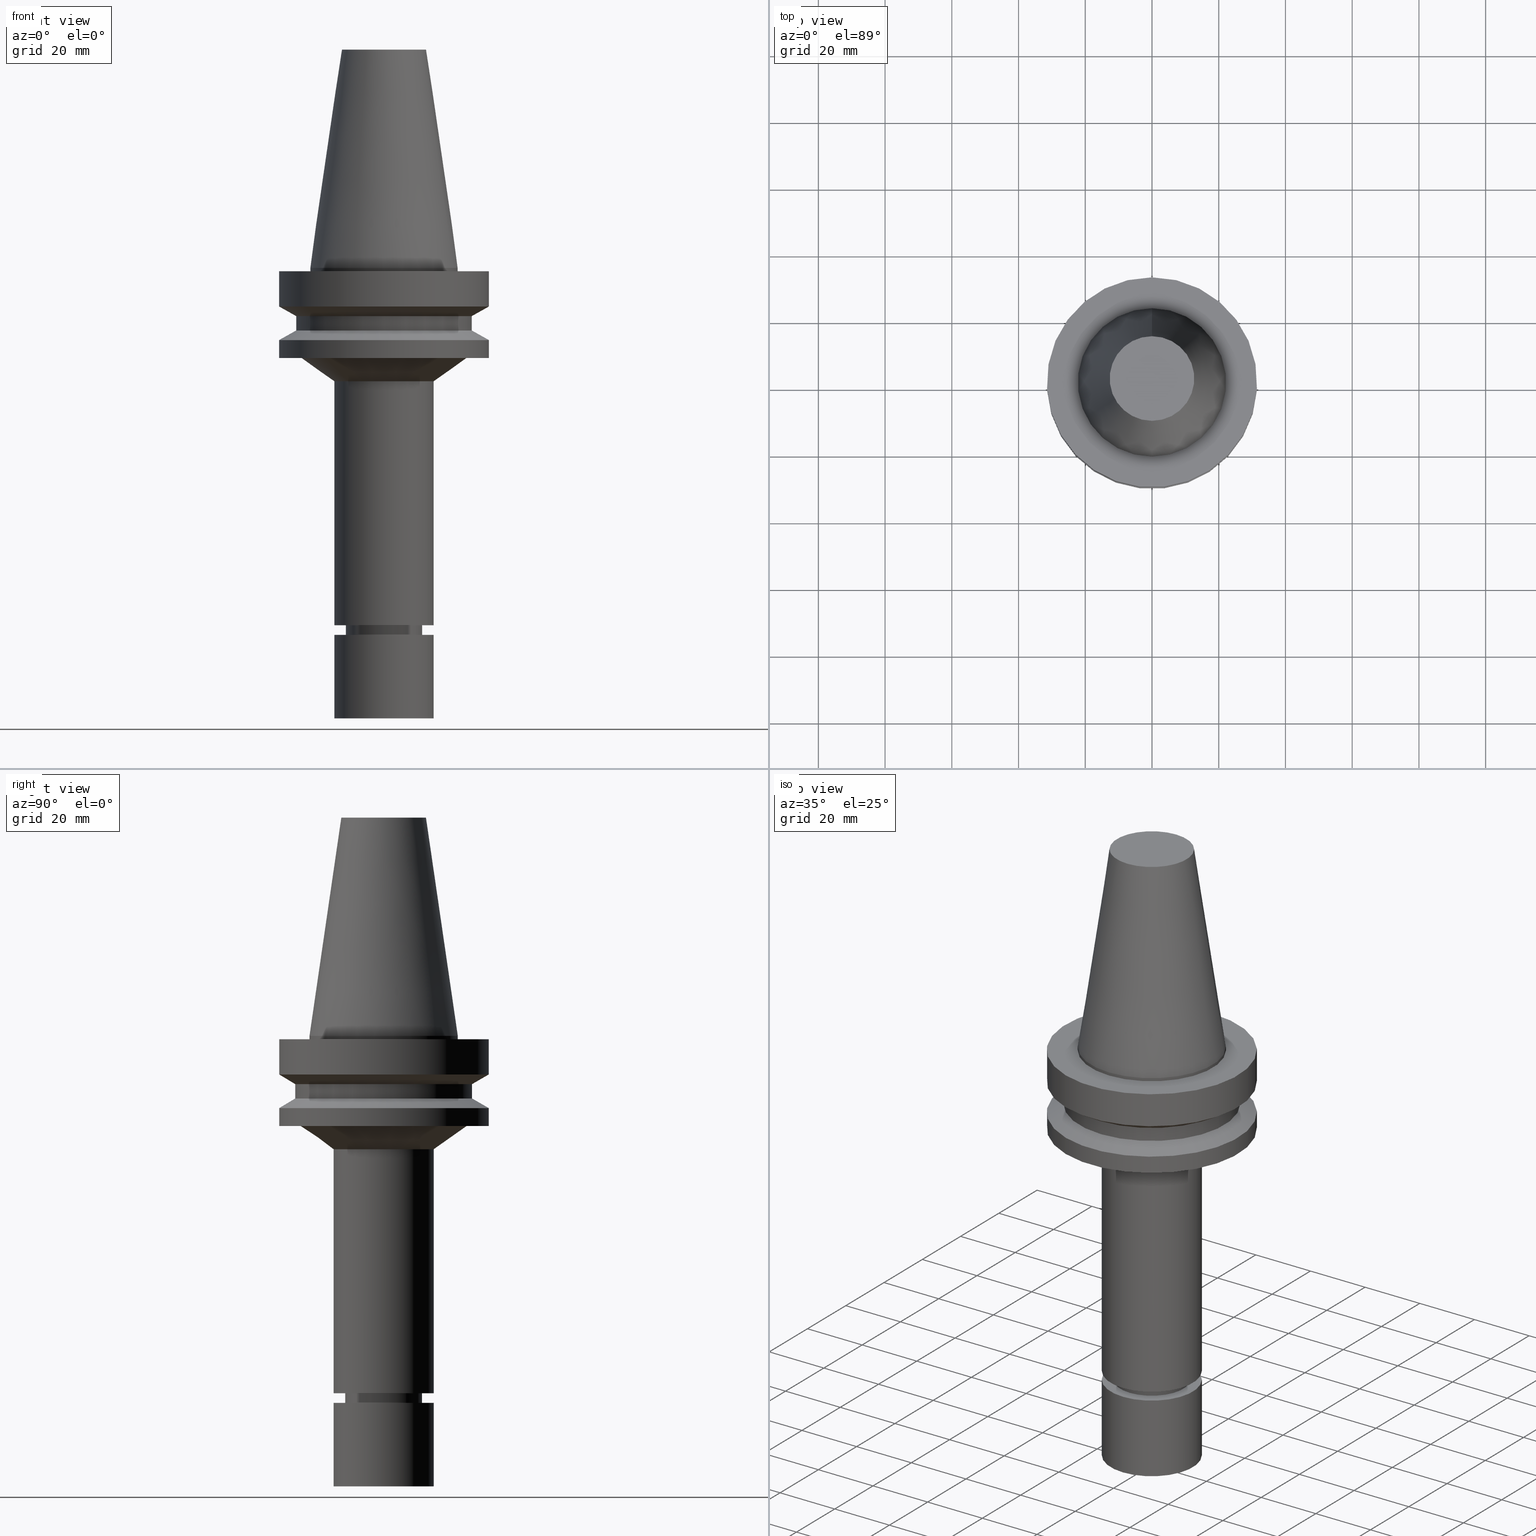
[diagram: canonical four-view strip — front | top / right | iso, engineering-drawing reading convention]
A machine part, canonical four-view strip (front | top / right | iso — engineering-drawing reading convention). The complete STEP part file that produces these views, byte-faithful:
ISO-10303-21;
HEADER;
FILE_DESCRIPTION((''),'1');
FILE_NAME('V:/90_\X2\53D65F9730C730FC30BF\X0\/00_\X2\6DE18DEF30C730FC30BF\X0\/ALL/BBT-BKUS\X2\FF76FF80FF9BFF78FF9E752852A05DE556F3\X0\201801/BBT40-MEGAER/BBT40-MEGAER16-135NL.stp','2018-02-07T01:48:48',(''),(''),'Spatial Interop R21 SP3','Kubotek KeyCreator 2011 V10.0.2 (22737)',' ');
FILE_SCHEMA(('automotive_design'));
ENDSEC;
DATA;
#1=MECHANICAL_DESIGN_GEOMETRIC_PRESENTATION_REPRESENTATION(' ',(#14,#15,#16,#17,#18,#19,#20,#21,#22,#23,#24,#25,#26,#27,#28,#29,#30,#31,#32,#33,#34,#35,#36,#37,#38,#39,#40,#41,#42,#43,#44,#45,#46,#47,#48,#49,#50,#51,#52,#53,#54,#55),#10);
#2=PRODUCT_DEFINITION_CONTEXT('',#56,'design');
#3=APPLICATION_PROTOCOL_DEFINITION('INTERNATIONAL STANDARD','automotive_design',1994,#56);
#4=PRODUCT_CATEGORY_RELATIONSHIP('NONE','NONE',#57,#58);
#5=SHAPE_DEFINITION_REPRESENTATION(#59,#60);
#6=PRODUCT_DEFINITION_CONTEXT('',#61,'design');
#7=APPLICATION_PROTOCOL_DEFINITION('INTERNATIONAL STANDARD','automotive_design',1994,#61);
#8=PRODUCT_CATEGORY_RELATIONSHIP('NONE','NONE',#62,#63);
#9=SHAPE_DEFINITION_REPRESENTATION(#64,#65);
#10= (GEOMETRIC_REPRESENTATION_CONTEXT(3)GLOBAL_UNCERTAINTY_ASSIGNED_CONTEXT((#68))GLOBAL_UNIT_ASSIGNED_CONTEXT((#70,#71,#72))REPRESENTATION_CONTEXT('NONE','WORKSPACE'));
#14=STYLED_ITEM('',(#74),#75);
#15=STYLED_ITEM('',(#76,#77),#78);
#16=STYLED_ITEM('',(#79),#80);
#17=STYLED_ITEM('',(#81,#82),#83);
#18=STYLED_ITEM('',(#84),#85);
#19=STYLED_ITEM('',(#86,#87),#88);
#20=STYLED_ITEM('',(#89),#90);
#21=STYLED_ITEM('',(#91),#92);
#22=STYLED_ITEM('',(#93,#94),#95);
#23=STYLED_ITEM('',(#96,#97),#98);
#24=STYLED_ITEM('',(#99),#100);
#25=STYLED_ITEM('',(#101,#102),#103);
#26=STYLED_ITEM('',(#104),#105);
#27=STYLED_ITEM('',(#106),#107);
#28=STYLED_ITEM('',(#108),#109);
#29=STYLED_ITEM('',(#110,#111),#112);
#30=STYLED_ITEM('',(#113,#114),#115);
#31=STYLED_ITEM('',(#116,#117),#118);
#32=STYLED_ITEM('',(#119,#120),#121);
#33=STYLED_ITEM('',(#122,#123),#124);
#34=STYLED_ITEM('',(#125),#126);
#35=STYLED_ITEM('',(#127,#128),#129);
#36=STYLED_ITEM('',(#130,#131),#132);
#37=STYLED_ITEM('',(#133,#134),#135);
#38=STYLED_ITEM('',(#136),#137);
#39=STYLED_ITEM('',(#138,#139),#140);
#40=STYLED_ITEM('',(#141,#142),#143);
#41=STYLED_ITEM('',(#144),#145);
#42=STYLED_ITEM('',(#146,#147),#148);
#43=STYLED_ITEM('',(#149),#150);
#44=STYLED_ITEM('',(#151),#152);
#45=STYLED_ITEM('',(#153,#154),#155);
#46=STYLED_ITEM('',(#156),#157);
#47=STYLED_ITEM('',(#158),#159);
#48=STYLED_ITEM('',(#160,#161),#162);
#49=STYLED_ITEM('',(#163,#164),#165);
#50=STYLED_ITEM('',(#166,#167),#168);
#51=STYLED_ITEM('',(#169),#170);
#52=STYLED_ITEM('',(#171,#172),#173);
#53=STYLED_ITEM('',(#174,#175),#176);
#54=STYLED_ITEM('',(#177),#178);
#55=STYLED_ITEM('',(#179),#180);
#56=APPLICATION_CONTEXT(' ');
#57=PRODUCT_CATEGORY('part','NONE');
#58=PRODUCT_RELATED_PRODUCT_CATEGORY('detail',' ',(#181));
#59=PRODUCT_DEFINITION_SHAPE('NONE','NONE',#182);
#60=ADVANCED_BREP_SHAPE_REPRESENTATION('Unnamed[1]',(#132,#183),#10);
#61=APPLICATION_CONTEXT(' ');
#62=PRODUCT_CATEGORY('part','NONE');
#63=PRODUCT_RELATED_PRODUCT_CATEGORY('detail',' ',(#184));
#64=PRODUCT_DEFINITION_SHAPE('NONE','NONE',#185);
#65=ADVANCED_BREP_SHAPE_REPRESENTATION('Unnamed[1]',(#98,#186),#10);
#68=UNCERTAINTY_MEASURE_WITH_UNIT(LENGTH_MEASURE(1.0E-006),#70,'','');
#70= (CONVERSION_BASED_UNIT('MILLIMETRE',#189)LENGTH_UNIT()NAMED_UNIT(#192));
#71= (NAMED_UNIT(#194)PLANE_ANGLE_UNIT()SI_UNIT($,.RADIAN.));
#72= (NAMED_UNIT(#194)SOLID_ANGLE_UNIT()SI_UNIT($,.STERADIAN.));
#74=PRESENTATION_STYLE_ASSIGNMENT((#200));
#75=EDGE_CURVE('Unnamed[1]',#201,#201,#202,.T.);
#76=PRESENTATION_STYLE_ASSIGNMENT((#203));
#77=PRESENTATION_STYLE_ASSIGNMENT((#204));
#78=ADVANCED_FACE('Unnamed[1]',(#205,#206),#207,.T.);
#79=PRESENTATION_STYLE_ASSIGNMENT((#208));
#80=EDGE_CURVE('Unnamed[1]',#209,#209,#210,.T.);
#81=PRESENTATION_STYLE_ASSIGNMENT((#211));
#82=PRESENTATION_STYLE_ASSIGNMENT((#212));
#83=ADVANCED_FACE('Unnamed[1]',(#213),#214,.T.);
#84=PRESENTATION_STYLE_ASSIGNMENT((#215));
#85=EDGE_CURVE('Unnamed[1]',#216,#216,#217,.T.);
#86=PRESENTATION_STYLE_ASSIGNMENT((#218));
#87=PRESENTATION_STYLE_ASSIGNMENT((#219));
#88=ADVANCED_FACE('Unnamed[1]',(#220,#221),#222,.T.);
#89=PRESENTATION_STYLE_ASSIGNMENT((#223));
#90=EDGE_CURVE('Unnamed[1]',#224,#224,#225,.T.);
#91=PRESENTATION_STYLE_ASSIGNMENT((#226));
#92=EDGE_CURVE('Unnamed[1]',#227,#227,#228,.T.);
#93=PRESENTATION_STYLE_ASSIGNMENT((#229));
#94=PRESENTATION_STYLE_ASSIGNMENT((#230));
#95=ADVANCED_FACE('Unnamed[1]',(#231,#232),#233,.T.);
#96=PRESENTATION_STYLE_ASSIGNMENT((#234));
#97=PRESENTATION_STYLE_ASSIGNMENT((#235));
#98=MANIFOLD_SOLID_BREP('Unnamed[1]',#236);
#99=PRESENTATION_STYLE_ASSIGNMENT((#237));
#100=EDGE_CURVE('Unnamed[1]',#238,#238,#239,.T.);
#101=PRESENTATION_STYLE_ASSIGNMENT((#240));
#102=PRESENTATION_STYLE_ASSIGNMENT((#241));
#103=ADVANCED_FACE('Unnamed[1]',(#242,#243),#244,.T.);
#104=PRESENTATION_STYLE_ASSIGNMENT((#245));
#105=EDGE_CURVE('Unnamed[1]',#246,#246,#247,.T.);
#106=PRESENTATION_STYLE_ASSIGNMENT((#248));
#107=EDGE_CURVE('Unnamed[1]',#249,#249,#250,.T.);
#108=PRESENTATION_STYLE_ASSIGNMENT((#251));
#109=EDGE_CURVE('Unnamed[1]',#252,#252,#253,.T.);
#110=PRESENTATION_STYLE_ASSIGNMENT((#254));
#111=PRESENTATION_STYLE_ASSIGNMENT((#255));
#112=ADVANCED_FACE('Unnamed[1]',(#256,#257),#258,.T.);
#113=PRESENTATION_STYLE_ASSIGNMENT((#259));
#114=PRESENTATION_STYLE_ASSIGNMENT((#260));
#115=ADVANCED_FACE('Unnamed[1]',(#261,#262),#263,.T.);
#116=PRESENTATION_STYLE_ASSIGNMENT((#264));
#117=PRESENTATION_STYLE_ASSIGNMENT((#265));
#118=ADVANCED_FACE('Unnamed[1]',(#266),#267,.T.);
#119=PRESENTATION_STYLE_ASSIGNMENT((#268));
#120=PRESENTATION_STYLE_ASSIGNMENT((#269));
#121=ADVANCED_FACE('Unnamed[1]',(#270,#271),#272,.T.);
#122=PRESENTATION_STYLE_ASSIGNMENT((#273));
#123=PRESENTATION_STYLE_ASSIGNMENT((#274));
#124=ADVANCED_FACE('Unnamed[1]',(#275,#276),#277,.T.);
#125=PRESENTATION_STYLE_ASSIGNMENT((#278));
#126=EDGE_CURVE('Unnamed[1]',#279,#279,#280,.T.);
#127=PRESENTATION_STYLE_ASSIGNMENT((#281));
#128=PRESENTATION_STYLE_ASSIGNMENT((#282));
#129=ADVANCED_FACE('Unnamed[1]',(#283,#284),#285,.T.);
#130=PRESENTATION_STYLE_ASSIGNMENT((#286));
#131=PRESENTATION_STYLE_ASSIGNMENT((#287));
#132=MANIFOLD_SOLID_BREP('Unnamed[1]',#288);
#133=PRESENTATION_STYLE_ASSIGNMENT((#289));
#134=PRESENTATION_STYLE_ASSIGNMENT((#290));
#135=ADVANCED_FACE('Unnamed[1]',(#291),#292,.T.);
#136=PRESENTATION_STYLE_ASSIGNMENT((#293));
#137=EDGE_CURVE('Unnamed[1]',#294,#294,#295,.T.);
#138=PRESENTATION_STYLE_ASSIGNMENT((#296));
#139=PRESENTATION_STYLE_ASSIGNMENT((#297));
#140=ADVANCED_FACE('Unnamed[1]',(#298,#299),#300,.T.);
#141=PRESENTATION_STYLE_ASSIGNMENT((#301));
#142=PRESENTATION_STYLE_ASSIGNMENT((#302));
#143=ADVANCED_FACE('Unnamed[1]',(#303,#304),#305,.T.);
#144=PRESENTATION_STYLE_ASSIGNMENT((#306));
#145=EDGE_CURVE('Unnamed[1]',#307,#307,#308,.T.);
#146=PRESENTATION_STYLE_ASSIGNMENT((#309));
#147=PRESENTATION_STYLE_ASSIGNMENT((#310));
#148=ADVANCED_FACE('Unnamed[1]',(#311,#312),#313,.T.);
#149=PRESENTATION_STYLE_ASSIGNMENT((#314));
#150=EDGE_CURVE('Unnamed[1]',#315,#315,#316,.T.);
#151=PRESENTATION_STYLE_ASSIGNMENT((#317));
#152=EDGE_CURVE('Unnamed[1]',#318,#318,#319,.T.);
#153=PRESENTATION_STYLE_ASSIGNMENT((#320));
#154=PRESENTATION_STYLE_ASSIGNMENT((#321));
#155=ADVANCED_FACE('Unnamed[1]',(#322,#323),#324,.T.);
#156=PRESENTATION_STYLE_ASSIGNMENT((#325));
#157=EDGE_CURVE('Unnamed[1]',#326,#326,#327,.T.);
#158=PRESENTATION_STYLE_ASSIGNMENT((#328));
#159=EDGE_CURVE('Unnamed[1]',#329,#329,#330,.T.);
#160=PRESENTATION_STYLE_ASSIGNMENT((#331));
#161=PRESENTATION_STYLE_ASSIGNMENT((#332));
#162=ADVANCED_FACE('Unnamed[1]',(#333),#334,.T.);
#163=PRESENTATION_STYLE_ASSIGNMENT((#335));
#164=PRESENTATION_STYLE_ASSIGNMENT((#336));
#165=ADVANCED_FACE('Unnamed[1]',(#337,#338),#339,.T.);
#166=PRESENTATION_STYLE_ASSIGNMENT((#340));
#167=PRESENTATION_STYLE_ASSIGNMENT((#341));
#168=ADVANCED_FACE('Unnamed[1]',(#342,#343),#344,.T.);
#169=PRESENTATION_STYLE_ASSIGNMENT((#345));
#170=EDGE_CURVE('Unnamed[1]',#346,#346,#347,.T.);
#171=PRESENTATION_STYLE_ASSIGNMENT((#348));
#172=PRESENTATION_STYLE_ASSIGNMENT((#349));
#173=ADVANCED_FACE('Unnamed[1]',(#350,#351),#352,.T.);
#174=PRESENTATION_STYLE_ASSIGNMENT((#353));
#175=PRESENTATION_STYLE_ASSIGNMENT((#354));
#176=ADVANCED_FACE('Unnamed[1]',(#355,#356),#357,.T.);
#177=PRESENTATION_STYLE_ASSIGNMENT((#358));
#178=EDGE_CURVE('Unnamed[1]',#359,#359,#360,.T.);
#179=PRESENTATION_STYLE_ASSIGNMENT((#361));
#180=EDGE_CURVE('Unnamed[1]',#362,#362,#363,.T.);
#181=PRODUCT('Unnamed[1]','Unnamed[1]','PART-Unnamed[1]-DESC',(#364));
#182=PRODUCT_DEFINITION('NONE','NONE',#365,#2);
#183=AXIS2_PLACEMENT_3D('',#366,#367,#368);
#184=PRODUCT('Unnamed[1]','Unnamed[1]','PART-Unnamed[1]-DESC',(#369));
#185=PRODUCT_DEFINITION('NONE','NONE',#370,#6);
#186=AXIS2_PLACEMENT_3D('',#371,#372,#373);
#189=LENGTH_MEASURE_WITH_UNIT(LENGTH_MEASURE(1.0),#374);
#192=DIMENSIONAL_EXPONENTS(1.0,0.0,0.0,0.0,0.0,0.0,0.0);
#194=DIMENSIONAL_EXPONENTS(0.0,0.0,0.0,0.0,0.0,0.0,0.0);
#200=CURVE_STYLE('',#375,POSITIVE_LENGTH_MEASURE(1000.0),#376);
#201=VERTEX_POINT('',#377);
#202=CIRCLE('',#378,22.225);
#203=SURFACE_STYLE_USAGE(.BOTH.,#379);
#204=CURVE_STYLE('',#380,POSITIVE_LENGTH_MEASURE(1000.0),#381);
#205=FACE_BOUND('',#382,.T.);
#206=FACE_BOUND('',#383,.T.);
#207=CONICAL_SURFACE('',#384,19.9344124647526,0.956240827688237);
#208=CURVE_STYLE('',#385,POSITIVE_LENGTH_MEASURE(1000.0),#386);
#209=VERTEX_POINT('',#387);
#210=CIRCLE('',#388,15.0000000000004);
#211=SURFACE_STYLE_USAGE(.BOTH.,#389);
#212=CURVE_STYLE('',#390,POSITIVE_LENGTH_MEASURE(1000.0),#391);
#213=FACE_OUTER_BOUND('',#392,.T.);
#214=PLANE('',#393);
#215=CURVE_STYLE('',#394,POSITIVE_LENGTH_MEASURE(1000.0),#395);
#216=VERTEX_POINT('',#396);
#217=CIRCLE('',#397,10.9999999999998);
#218=SURFACE_STYLE_USAGE(.BOTH.,#398);
#219=CURVE_STYLE('',#399,POSITIVE_LENGTH_MEASURE(1000.0),#400);
#220=FACE_BOUND('',#401,.T.);
#221=FACE_BOUND('',#402,.T.);
#222=CONICAL_SURFACE('',#403,10.4499999999998,0.523598775598218);
#223=CURVE_STYLE('',#404,POSITIVE_LENGTH_MEASURE(1000.0),#405);
#224=VERTEX_POINT('',#406);
#225=CIRCLE('',#407,12.6875000000001);
#226=CURVE_STYLE('',#408,POSITIVE_LENGTH_MEASURE(1000.0),#409);
#227=VERTEX_POINT('',#410);
#228=CIRCLE('',#411,31.5000000000003);
#229=SURFACE_STYLE_USAGE(.BOTH.,#412);
#230=CURVE_STYLE('',#413,POSITIVE_LENGTH_MEASURE(1000.0),#414);
#231=FACE_OUTER_BOUND('',#415,.T.);
#232=FACE_BOUND('',#416,.T.);
#233=PLANE('',#417);
#234=SURFACE_STYLE_USAGE(.BOTH.,#418);
#235=CURVE_STYLE('',#419,POSITIVE_LENGTH_MEASURE(1000.0),#420);
#236=CLOSED_SHELL('',(#162,#135,#168));
#237=CURVE_STYLE('',#421,POSITIVE_LENGTH_MEASURE(1000.0),#422);
#238=VERTEX_POINT('',#423);
#239=CIRCLE('',#424,11.500000000002);
#240=SURFACE_STYLE_USAGE(.BOTH.,#425);
#241=CURVE_STYLE('',#426,POSITIVE_LENGTH_MEASURE(1000.0),#427);
#242=FACE_BOUND('',#428,.T.);
#243=FACE_BOUND('',#429,.T.);
#244=CYLINDRICAL_SURFACE('',#430,15.0000000000002);
#245=CURVE_STYLE('',#431,POSITIVE_LENGTH_MEASURE(1000.0),#432);
#246=VERTEX_POINT('',#433);
#247=CIRCLE('',#434,24.8688249295048);
#248=CURVE_STYLE('',#435,POSITIVE_LENGTH_MEASURE(1000.0),#436);
#249=VERTEX_POINT('',#437);
#250=CIRCLE('',#438,26.4999999999994);
#251=CURVE_STYLE('',#439,POSITIVE_LENGTH_MEASURE(1000.0),#440);
#252=VERTEX_POINT('',#441);
#253=CIRCLE('',#442,31.5000000000003);
#254=SURFACE_STYLE_USAGE(.BOTH.,#443);
#255=CURVE_STYLE('',#444,POSITIVE_LENGTH_MEASURE(1000.0),#445);
#256=FACE_BOUND('',#446,.T.);
#257=FACE_BOUND('',#447,.T.);
#258=CYLINDRICAL_SURFACE('',#448,11.4999999999963);
#259=SURFACE_STYLE_USAGE(.BOTH.,#449);
#260=CURVE_STYLE('',#450,POSITIVE_LENGTH_MEASURE(1000.0),#451);
#261=FACE_BOUND('',#452,.T.);
#262=FACE_BOUND('',#453,.T.);
#263=CYLINDRICAL_SURFACE('',#454,11.0);
#264=SURFACE_STYLE_USAGE(.BOTH.,#455);
#265=CURVE_STYLE('',#456,POSITIVE_LENGTH_MEASURE(1000.0),#457);
#266=FACE_OUTER_BOUND('',#458,.T.);
#267=PLANE('',#459);
#268=SURFACE_STYLE_USAGE(.BOTH.,#460);
#269=CURVE_STYLE('',#461,POSITIVE_LENGTH_MEASURE(1000.0),#462);
#270=FACE_BOUND('',#463,.T.);
#271=FACE_OUTER_BOUND('',#464,.T.);
#272=PLANE('',#465);
#273=SURFACE_STYLE_USAGE(.BOTH.,#466);
#274=CURVE_STYLE('',#467,POSITIVE_LENGTH_MEASURE(1000.0),#468);
#275=FACE_BOUND('',#469,.T.);
#276=FACE_BOUND('',#470,.T.);
#277=CONICAL_SURFACE('',#471,11.2500000000009,1.04719755118898);
#278=CURVE_STYLE('',#472,POSITIVE_LENGTH_MEASURE(1000.0),#473);
#279=VERTEX_POINT('',#474);
#280=CIRCLE('',#475,31.5000000000006);
#281=SURFACE_STYLE_USAGE(.BOTH.,#476);
#282=CURVE_STYLE('',#477,POSITIVE_LENGTH_MEASURE(1000.0),#478);
#283=FACE_BOUND('',#479,.T.);
#284=FACE_BOUND('',#480,.T.);
#285=CONICAL_SURFACE('',#481,29.0000000000003,1.04719755119651);
#286=SURFACE_STYLE_USAGE(.BOTH.,#482);
#287=CURVE_STYLE('',#483,POSITIVE_LENGTH_MEASURE(1000.0),#484);
#288=CLOSED_SHELL('',(#118,#143,#155,#95,#173,#148,#165,#129,#176,#140,#78,#103,#121,#112,#124,#115,#88,#83));
#289=SURFACE_STYLE_USAGE(.BOTH.,#485);
#290=CURVE_STYLE('',#486,POSITIVE_LENGTH_MEASURE(1000.0),#487);
#291=FACE_OUTER_BOUND('',#488,.T.);
#292=PLANE('',#489);
#293=CURVE_STYLE('',#490,POSITIVE_LENGTH_MEASURE(1000.0),#491);
#294=VERTEX_POINT('',#492);
#295=CIRCLE('',#493,14.9999999999999);
#296=SURFACE_STYLE_USAGE(.BOTH.,#494);
#297=CURVE_STYLE('',#495,POSITIVE_LENGTH_MEASURE(1000.0),#496);
#298=FACE_BOUND('',#497,.T.);
#299=FACE_OUTER_BOUND('',#498,.T.);
#300=PLANE('',#499);
#301=SURFACE_STYLE_USAGE(.BOTH.,#500);
#302=CURVE_STYLE('',#501,POSITIVE_LENGTH_MEASURE(1000.0),#502);
#303=FACE_BOUND('',#503,.T.);
#304=FACE_BOUND('',#504,.T.);
#305=CONICAL_SURFACE('',#505,17.45625,0.144812498238936);
#306=CURVE_STYLE('',#506,POSITIVE_LENGTH_MEASURE(1000.0),#507);
#307=VERTEX_POINT('',#508);
#308=CIRCLE('',#509,22.225);
#309=SURFACE_STYLE_USAGE(.BOTH.,#510);
#310=CURVE_STYLE('',#511,POSITIVE_LENGTH_MEASURE(1000.0),#512);
#311=FACE_BOUND('',#513,.T.);
#312=FACE_BOUND('',#514,.T.);
#313=CONICAL_SURFACE('',#515,28.9999999999999,1.04719755119657);
#314=CURVE_STYLE('',#516,POSITIVE_LENGTH_MEASURE(1000.0),#517);
#315=VERTEX_POINT('',#518);
#316=CIRCLE('',#519,15.0);
#317=CURVE_STYLE('',#520,POSITIVE_LENGTH_MEASURE(1000.0),#521);
#318=VERTEX_POINT('',#522);
#319=CIRCLE('',#523,15.0);
#320=SURFACE_STYLE_USAGE(.BOTH.,#524);
#321=CURVE_STYLE('',#525,POSITIVE_LENGTH_MEASURE(1000.0),#526);
#322=FACE_BOUND('',#527,.T.);
#323=FACE_BOUND('',#528,.T.);
#324=CYLINDRICAL_SURFACE('',#529,22.225);
#325=CURVE_STYLE('',#530,POSITIVE_LENGTH_MEASURE(1000.0),#531);
#326=VERTEX_POINT('',#532);
#327=CIRCLE('',#533,26.5);
#328=CURVE_STYLE('',#534,POSITIVE_LENGTH_MEASURE(1000.0),#535);
#329=VERTEX_POINT('',#536);
#330=CIRCLE('',#537,11.4999999999906);
#331=SURFACE_STYLE_USAGE(.BOTH.,#538);
#332=CURVE_STYLE('',#539,POSITIVE_LENGTH_MEASURE(1000.0),#540);
#333=FACE_OUTER_BOUND('',#541,.T.);
#334=PLANE('',#542);
#335=SURFACE_STYLE_USAGE(.BOTH.,#543);
#336=CURVE_STYLE('',#544,POSITIVE_LENGTH_MEASURE(1000.0),#545);
#337=FACE_BOUND('',#546,.T.);
#338=FACE_BOUND('',#547,.T.);
#339=CYLINDRICAL_SURFACE('',#548,26.4999999999997);
#340=SURFACE_STYLE_USAGE(.BOTH.,#549);
#341=CURVE_STYLE('',#550,POSITIVE_LENGTH_MEASURE(1000.0),#551);
#342=FACE_BOUND('',#552,.T.);
#343=FACE_BOUND('',#553,.T.);
#344=CYLINDRICAL_SURFACE('',#554,14.9999999999999);
#345=CURVE_STYLE('',#555,POSITIVE_LENGTH_MEASURE(1000.0),#556);
#346=VERTEX_POINT('',#557);
#347=CIRCLE('',#558,9.89999999999947);
#348=SURFACE_STYLE_USAGE(.BOTH.,#559);
#349=CURVE_STYLE('',#560,POSITIVE_LENGTH_MEASURE(1000.0),#561);
#350=FACE_BOUND('',#562,.T.);
#351=FACE_BOUND('',#563,.T.);
#352=CYLINDRICAL_SURFACE('',#564,31.5);
#353=SURFACE_STYLE_USAGE(.BOTH.,#565);
#354=CURVE_STYLE('',#566,POSITIVE_LENGTH_MEASURE(1000.0),#567);
#355=FACE_BOUND('',#568,.T.);
#356=FACE_BOUND('',#569,.T.);
#357=CYLINDRICAL_SURFACE('',#570,31.5000000000005);
#358=CURVE_STYLE('',#571,POSITIVE_LENGTH_MEASURE(1000.0),#572);
#359=VERTEX_POINT('',#573);
#360=CIRCLE('',#574,31.4999999999996);
#361=CURVE_STYLE('',#575,POSITIVE_LENGTH_MEASURE(1000.0),#576);
#362=VERTEX_POINT('',#577);
#363=CIRCLE('',#578,11.0000000000002);
#364=PRODUCT_CONTEXT('',#56,'mechanical');
#365=PRODUCT_DEFINITION_FORMATION_WITH_SPECIFIED_SOURCE(' ','NONE',#181,.NOT_KNOWN.);
#366=CARTESIAN_POINT('',(0.0,0.0,0.0));
#367=DIRECTION('',(0.0,0.0,1.0));
#368=DIRECTION('',(1.0,0.0,0.0));
#369=PRODUCT_CONTEXT('',#61,'mechanical');
#370=PRODUCT_DEFINITION_FORMATION_WITH_SPECIFIED_SOURCE(' ','NONE',#184,.NOT_KNOWN.);
#371=CARTESIAN_POINT('',(0.0,0.0,0.0));
#372=DIRECTION('',(0.0,0.0,1.0));
#373=DIRECTION('',(1.0,0.0,0.0));
#374= (NAMED_UNIT(#192)LENGTH_UNIT()SI_UNIT(.MILLI.,.METRE.));
#375=DRAUGHTING_PRE_DEFINED_CURVE_FONT('continuous');
#376=COLOUR_RGB('',0.0,1.0,0.0);
#377=CARTESIAN_POINT('',(6.12323399573622E-017,22.2250000000001,-0.999999999999912));
#378=AXIS2_PLACEMENT_3D('',#580,#581,#582);
#379=SURFACE_SIDE_STYLE('',(#583));
#380=DRAUGHTING_PRE_DEFINED_CURVE_FONT('continuous');
#381=COLOUR_RGB('',0.0,1.0,0.0);
#382=EDGE_LOOP('',(#584));
#383=EDGE_LOOP('',(#585));
#384=AXIS2_PLACEMENT_3D('',#586,#587,#588);
#385=DRAUGHTING_PRE_DEFINED_CURVE_FONT('continuous');
#386=COLOUR_RGB('',0.0,1.0,0.0);
#387=CARTESIAN_POINT('',(2.07973442388956E-015,15.0000000000005,-33.9646406676204));
#388=AXIS2_PLACEMENT_3D('',#589,#590,#591);
#389=SURFACE_SIDE_STYLE('',(#592));
#390=DRAUGHTING_PRE_DEFINED_CURVE_FONT('continuous');
#391=COLOUR_RGB('',0.0,1.0,0.0);
#392=EDGE_LOOP('',(#593));
#393=AXIS2_PLACEMENT_3D('',#594,#595,#596);
#394=DRAUGHTING_PRE_DEFINED_CURVE_FONT('continuous');
#395=COLOUR_RGB('',0.0,1.0,0.0);
#396=CARTESIAN_POINT('',(6.93150088317392E-015,10.9999999999999,-113.199999999998));
#397=AXIS2_PLACEMENT_3D('',#597,#598,#599);
#398=SURFACE_SIDE_STYLE('',(#600));
#399=DRAUGHTING_PRE_DEFINED_CURVE_FONT('continuous');
#400=COLOUR_RGB('',0.0,1.0,0.0);
#401=EDGE_LOOP('',(#601));
#402=EDGE_LOOP('',(#602));
#403=AXIS2_PLACEMENT_3D('',#603,#604,#605);
#404=DRAUGHTING_PRE_DEFINED_CURVE_FONT('continuous');
#405=COLOUR_RGB('',0.0,1.0,0.0);
#406=CARTESIAN_POINT('',(-4.00459503321185E-015,12.6875000000002,65.4000000000001));
#407=AXIS2_PLACEMENT_3D('',#606,#607,#608);
#408=DRAUGHTING_PRE_DEFINED_CURVE_FONT('continuous');
#409=COLOUR_RGB('',0.0,1.0,0.0);
#410=CARTESIAN_POINT('',(7.08182973902924E-016,31.5000000000004,-11.5655056526664));
#411=AXIS2_PLACEMENT_3D('',#609,#610,#611);
#412=SURFACE_SIDE_STYLE('',(#612));
#413=DRAUGHTING_PRE_DEFINED_CURVE_FONT('continuous');
#414=COLOUR_RGB('',0.0,1.0,0.0);
#415=EDGE_LOOP('',(#613));
#416=EDGE_LOOP('',(#614));
#417=AXIS2_PLACEMENT_3D('',#615,#616,#617);
#418=SURFACE_SIDE_STYLE('',(#618));
#419=DRAUGHTING_PRE_DEFINED_CURVE_FONT('continuous');
#420=COLOUR_RGB('',0.0,1.0,0.0);
#421=DRAUGHTING_PRE_DEFINED_CURVE_FONT('continuous');
#422=COLOUR_RGB('',0.0,1.0,0.0);
#423=CARTESIAN_POINT('',(6.91382462919479E-015,11.500000000002,-112.911324865397));
#424=AXIS2_PLACEMENT_3D('',#619,#620,#621);
#425=SURFACE_SIDE_STYLE('',(#622));
#426=DRAUGHTING_PRE_DEFINED_CURVE_FONT('continuous');
#427=COLOUR_RGB('',0.0,1.0,0.0);
#428=EDGE_LOOP('',(#623));
#429=EDGE_LOOP('',(#624));
#430=AXIS2_PLACEMENT_3D('',#625,#626,#627);
#431=DRAUGHTING_PRE_DEFINED_CURVE_FONT('continuous');
#432=COLOUR_RGB('',0.0,1.0,0.0);
#433=CARTESIAN_POINT('',(1.65327317884891E-015,24.8688249295049,-26.9999999999998));
#434=AXIS2_PLACEMENT_3D('',#628,#629,#630);
#435=DRAUGHTING_PRE_DEFINED_CURVE_FONT('continuous');
#436=COLOUR_RGB('',0.0,1.0,0.0);
#437=CARTESIAN_POINT('',(8.8494551369045E-016,26.4999999999995,-14.4522569986152));
#438=AXIS2_PLACEMENT_3D('',#631,#632,#633);
#439=DRAUGHTING_PRE_DEFINED_CURVE_FONT('continuous');
#440=COLOUR_RGB('',0.0,1.0,0.0);
#441=CARTESIAN_POINT('',(1.65327317884891E-015,31.5000000000004,-26.9999999999998));
#442=AXIS2_PLACEMENT_3D('',#634,#635,#636);
#443=SURFACE_SIDE_STYLE('',(#637));
#444=DRAUGHTING_PRE_DEFINED_CURVE_FONT('continuous');
#445=COLOUR_RGB('',0.0,1.0,0.0);
#446=EDGE_LOOP('',(#638));
#447=EDGE_LOOP('',(#639));
#448=AXIS2_PLACEMENT_3D('',#640,#641,#642);
#449=SURFACE_SIDE_STYLE('',(#643));
#450=DRAUGHTING_PRE_DEFINED_CURVE_FONT('continuous');
#451=COLOUR_RGB('',0.0,1.0,0.0);
#452=EDGE_LOOP('',(#644));
#453=EDGE_LOOP('',(#645));
#454=AXIS2_PLACEMENT_3D('',#646,#647,#648);
#455=SURFACE_SIDE_STYLE('',(#649));
#456=DRAUGHTING_PRE_DEFINED_CURVE_FONT('continuous');
#457=COLOUR_RGB('',0.0,1.0,0.0);
#458=EDGE_LOOP('',(#650));
#459=AXIS2_PLACEMENT_3D('',#651,#652,#653);
#460=SURFACE_SIDE_STYLE('',(#654));
#461=DRAUGHTING_PRE_DEFINED_CURVE_FONT('continuous');
#462=COLOUR_RGB('',0.0,1.0,0.0);
#463=EDGE_LOOP('',(#655));
#464=EDGE_LOOP('',(#656));
#465=AXIS2_PLACEMENT_3D('',#657,#658,#659);
#466=SURFACE_SIDE_STYLE('',(#660));
#467=DRAUGHTING_PRE_DEFINED_CURVE_FONT('continuous');
#468=COLOUR_RGB('',0.0,1.0,0.0);
#469=EDGE_LOOP('',(#661));
#470=EDGE_LOOP('',(#662));
#471=AXIS2_PLACEMENT_3D('',#663,#664,#665);
#472=DRAUGHTING_PRE_DEFINED_CURVE_FONT('continuous');
#473=COLOUR_RGB('',0.0,1.0,0.0);
#474=CARTESIAN_POINT('',(1.32473071268174E-015,31.5000000000007,-21.6344943473346));
#475=AXIS2_PLACEMENT_3D('',#666,#667,#668);
#476=SURFACE_SIDE_STYLE('',(#669));
#477=DRAUGHTING_PRE_DEFINED_CURVE_FONT('continuous');
#478=COLOUR_RGB('',0.0,1.0,0.0);
#479=EDGE_LOOP('',(#670));
#480=EDGE_LOOP('',(#671));
#481=AXIS2_PLACEMENT_3D('',#672,#673,#674);
#482=SURFACE_SIDE_STYLE('',(#675));
#483=DRAUGHTING_PRE_DEFINED_CURVE_FONT('continuous');
#484=COLOUR_RGB('',0.0,1.0,0.0);
#485=SURFACE_SIDE_STYLE('',(#676));
#486=DRAUGHTING_PRE_DEFINED_CURVE_FONT('continuous');
#487=COLOUR_RGB('',0.0,1.0,0.0);
#488=EDGE_LOOP('',(#677));
#489=AXIS2_PLACEMENT_3D('',#678,#679,#680);
#490=DRAUGHTING_PRE_DEFINED_CURVE_FONT('continuous');
#491=COLOUR_RGB('',0.0,1.0,0.0);
#492=CARTESIAN_POINT('',(8.26636589424463E-015,15.0,-135.0));
#493=AXIS2_PLACEMENT_3D('',#681,#682,#683);
#494=SURFACE_SIDE_STYLE('',(#684));
#495=DRAUGHTING_PRE_DEFINED_CURVE_FONT('continuous');
#496=COLOUR_RGB('',0.0,1.0,0.0);
#497=EDGE_LOOP('',(#685));
#498=EDGE_LOOP('',(#686));
#499=AXIS2_PLACEMENT_3D('',#687,#688,#689);
#500=SURFACE_SIDE_STYLE('',(#690));
#501=DRAUGHTING_PRE_DEFINED_CURVE_FONT('continuous');
#502=COLOUR_RGB('',0.0,1.0,0.0);
#503=EDGE_LOOP('',(#691));
#504=EDGE_LOOP('',(#692));
#505=AXIS2_PLACEMENT_3D('',#693,#694,#695);
#506=DRAUGHTING_PRE_DEFINED_CURVE_FONT('continuous');
#507=COLOUR_RGB('',0.0,1.0,0.0);
#508=CARTESIAN_POINT('',(1.71319921032766E-029,22.2250000000001,-2.8153873565375E-013));
#509=AXIS2_PLACEMENT_3D('',#696,#697,#698);
#510=SURFACE_SIDE_STYLE('',(#699));
#511=DRAUGHTING_PRE_DEFINED_CURVE_FONT('continuous');
#512=COLOUR_RGB('',0.0,1.0,0.0);
#513=EDGE_LOOP('',(#700));
#514=EDGE_LOOP('',(#701));
#515=AXIS2_PLACEMENT_3D('',#702,#703,#704);
#516=DRAUGHTING_PRE_DEFINED_CURVE_FONT('continuous');
#517=COLOUR_RGB('',0.0,1.0,0.0);
#518=CARTESIAN_POINT('',(6.73555739531044E-015,15.0,-110.0));
#519=AXIS2_PLACEMENT_3D('',#705,#706,#707);
#520=DRAUGHTING_PRE_DEFINED_CURVE_FONT('continuous');
#521=COLOUR_RGB('',0.0,1.0,0.0);
#522=CARTESIAN_POINT('',(6.55798360943403E-015,15.0000000000001,-107.099999999999));
#523=AXIS2_PLACEMENT_3D('',#708,#709,#710);
#524=SURFACE_SIDE_STYLE('',(#711));
#525=DRAUGHTING_PRE_DEFINED_CURVE_FONT('continuous');
#526=COLOUR_RGB('',0.0,1.0,0.0);
#527=EDGE_LOOP('',(#712));
#528=EDGE_LOOP('',(#713));
#529=AXIS2_PLACEMENT_3D('',#714,#715,#716);
#530=DRAUGHTING_PRE_DEFINED_CURVE_FONT('continuous');
#531=COLOUR_RGB('',0.0,1.0,0.0);
#532=CARTESIAN_POINT('',(1.1479681728942E-015,26.5,-18.7477430013855));
#533=AXIS2_PLACEMENT_3D('',#717,#718,#719);
#534=DRAUGHTING_PRE_DEFINED_CURVE_FONT('continuous');
#535=COLOUR_RGB('',0.0,1.0,0.0);
#536=CARTESIAN_POINT('',(6.55798360943408E-015,11.4999999999907,-107.1));
#537=AXIS2_PLACEMENT_3D('',#720,#721,#722);
#538=SURFACE_SIDE_STYLE('',(#723));
#539=DRAUGHTING_PRE_DEFINED_CURVE_FONT('continuous');
#540=COLOUR_RGB('',0.0,1.0,0.0);
#541=EDGE_LOOP('',(#724));
#542=AXIS2_PLACEMENT_3D('',#725,#726,#727);
#543=SURFACE_SIDE_STYLE('',(#728));
#544=DRAUGHTING_PRE_DEFINED_CURVE_FONT('continuous');
#545=COLOUR_RGB('',0.0,1.0,0.0);
#546=EDGE_LOOP('',(#729));
#547=EDGE_LOOP('',(#730));
#548=AXIS2_PLACEMENT_3D('',#731,#732,#733);
#549=SURFACE_SIDE_STYLE('',(#734));
#550=DRAUGHTING_PRE_DEFINED_CURVE_FONT('continuous');
#551=COLOUR_RGB('',0.0,1.0,0.0);
#552=EDGE_LOOP('',(#735));
#553=EDGE_LOOP('',(#736));
#554=AXIS2_PLACEMENT_3D('',#737,#738,#739);
#555=DRAUGHTING_PRE_DEFINED_CURVE_FONT('continuous');
#556=COLOUR_RGB('',0.0,1.0,0.0);
#557=CARTESIAN_POINT('',(7.72752130261975E-015,9.89999999999953,-126.199999999999));
#558=AXIS2_PLACEMENT_3D('',#740,#741,#742);
#559=SURFACE_SIDE_STYLE('',(#743));
#560=DRAUGHTING_PRE_DEFINED_CURVE_FONT('continuous');
#561=COLOUR_RGB('',0.0,1.0,0.0);
#562=EDGE_LOOP('',(#744));
#563=EDGE_LOOP('',(#745));
#564=AXIS2_PLACEMENT_3D('',#746,#747,#748);
#565=SURFACE_SIDE_STYLE('',(#749));
#566=DRAUGHTING_PRE_DEFINED_CURVE_FONT('continuous');
#567=COLOUR_RGB('',0.0,1.0,0.0);
#568=EDGE_LOOP('',(#750));
#569=EDGE_LOOP('',(#751));
#570=AXIS2_PLACEMENT_3D('',#752,#753,#754);
#571=DRAUGHTING_PRE_DEFINED_CURVE_FONT('continuous');
#572=COLOUR_RGB('',0.0,1.0,0.0);
#573=CARTESIAN_POINT('',(6.12323399573568E-017,31.4999999999997,-0.999999999999825));
#574=AXIS2_PLACEMENT_3D('',#755,#756,#757);
#575=DRAUGHTING_PRE_DEFINED_CURVE_FONT('continuous');
#576=COLOUR_RGB('',0.0,1.0,0.0);
#577=CARTESIAN_POINT('',(7.61085802635992E-015,11.0000000000002,-124.294744111672));
#578=AXIS2_PLACEMENT_3D('',#758,#759,#760);
#580=CARTESIAN_POINT('',(6.12323399573624E-017,7.08242286425812E-014,-0.999999999999915));
#581=DIRECTION('',(6.12323399573677E-017,-9.41263592148422E-017,-1.0));
#582=DIRECTION('',(9.36424495623503E-034,1.0,-9.41263592148422E-017));
#583=SURFACE_STYLE_FILL_AREA(#761);
#584=ORIENTED_EDGE('',*,*,#80,.F.);
#585=ORIENTED_EDGE('',*,*,#105,.T.);
#586=CARTESIAN_POINT('',(1.86650380136924E-015,6.80491651683539E-014,-30.4823203338101));
#587=DIRECTION('',(-6.12323399573677E-017,9.41263592148422E-017,1.0));
#588=DIRECTION('',(9.36424495623502E-034,1.0,-9.41263592148422E-017));
#589=CARTESIAN_POINT('',(2.07973442388956E-015,6.77213870337125E-014,-33.9646406676204));
#590=DIRECTION('',(6.12323399573677E-017,-9.41263592148422E-017,-1.0));
#591=DIRECTION('',(9.36424495623503E-034,1.0,-9.41263592148422E-017));
#592=SURFACE_STYLE_FILL_AREA(#762);
#593=ORIENTED_EDGE('',*,*,#170,.T.);
#594=CARTESIAN_POINT('',(7.72752130261977E-015,4.9499999999998,-126.2));
#595=DIRECTION('',(6.12323399573677E-017,8.05070974123748E-014,-1.0));
#596=DIRECTION('',(-4.93446511046622E-030,1.0,8.05070974123748E-014));
#597=CARTESIAN_POINT('',(6.93150088317392E-015,6.0263251138676E-014,-113.199999999998));
#598=DIRECTION('',(6.12323399573677E-017,-9.41263592148422E-017,-1.0));
#599=DIRECTION('',(9.36424495623504E-034,1.0,-9.41263592148422E-017));
#600=SURFACE_STYLE_FILL_AREA(#763);
#601=ORIENTED_EDGE('',*,*,#170,.F.);
#602=ORIENTED_EDGE('',*,*,#180,.T.);
#603=CARTESIAN_POINT('',(7.66918966448983E-015,5.91292758689534E-014,-125.247372055836));
#604=DIRECTION('',(-6.12323399573677E-017,9.41263592148422E-017,1.0));
#605=DIRECTION('',(9.36424495623502E-034,1.0,-9.41263592148422E-017));
#606=CARTESIAN_POINT('',(-4.00459503321185E-015,7.70742188944467E-014,65.4000000000001));
#607=DIRECTION('',(6.12323399573677E-017,-9.41263592148422E-017,-1.0));
#608=DIRECTION('',(9.36424495623502E-034,1.0,-9.41263592148422E-017));
#609=CARTESIAN_POINT('',(7.08182973902924E-016,6.98297360622318E-014,-11.5655056526664));
#610=DIRECTION('',(6.12323399573677E-017,-9.41263592148422E-017,-1.0));
#611=DIRECTION('',(9.364244956235E-034,1.0,-9.41263592148422E-017));
#612=SURFACE_STYLE_FILL_AREA(#764);
#613=ORIENTED_EDGE('',*,*,#178,.F.);
#614=ORIENTED_EDGE('',*,*,#75,.T.);
#615=CARTESIAN_POINT('',(6.12323399573595E-017,26.8624999999999,-0.999999999999869));
#616=DIRECTION('',(-6.12323399573677E-017,-9.35138060429241E-015,1.0));
#617=DIRECTION('',(5.77434068963536E-031,-1.0,-9.35138060429241E-015));
#618=SURFACE_STYLE_FILL_AREA(#765);
#619=CARTESIAN_POINT('',(6.91382462919479E-015,6.02904230780919E-014,-112.911324865397));
#620=DIRECTION('',(6.12323399573677E-017,-9.41263592148422E-017,-1.0));
#621=DIRECTION('',(9.36424495623502E-034,1.0,-9.41263592148422E-017));
#622=SURFACE_STYLE_FILL_AREA(#766);
#623=ORIENTED_EDGE('',*,*,#152,.F.);
#624=ORIENTED_EDGE('',*,*,#80,.T.);
#625=CARTESIAN_POINT('',(4.3188590166618E-015,6.42794044817995E-014,-70.5323203338098));
#626=DIRECTION('',(6.12323399573677E-017,-9.41263592148422E-017,-1.0));
#627=DIRECTION('',(9.364244956235E-034,1.0,-9.41263592148422E-017));
#628=CARTESIAN_POINT('',(1.65327317884891E-015,6.83769433029953E-014,-26.9999999999998));
#629=DIRECTION('',(6.12323399573677E-017,-9.41263592148422E-017,-1.0));
#630=DIRECTION('',(9.36424495623501E-034,1.0,-9.41263592148422E-017));
#631=CARTESIAN_POINT('',(8.8494551369045E-016,6.95580166680791E-014,-14.4522569986152));
#632=DIRECTION('',(6.12323399573677E-017,-9.41263592148422E-017,-1.0));
#633=DIRECTION('',(9.36424495623502E-034,1.0,-9.41263592148422E-017));
#634=CARTESIAN_POINT('',(1.65327317884891E-015,6.83769433029953E-014,-26.9999999999998));
#635=DIRECTION('',(6.12323399573677E-017,-9.41263592148422E-017,-1.0));
#636=DIRECTION('',(9.36424495623501E-034,1.0,-9.41263592148422E-017));
#637=SURFACE_STYLE_FILL_AREA(#767);
#638=ORIENTED_EDGE('',*,*,#100,.F.);
#639=ORIENTED_EDGE('',*,*,#159,.T.);
#640=CARTESIAN_POINT('',(6.73590411931444E-015,6.05639225039891E-014,-110.005662432699));
#641=DIRECTION('',(6.12323399573677E-017,-9.41263592148422E-017,-1.0));
#642=DIRECTION('',(9.36424495623502E-034,1.0,-9.41263592148422E-017));
#643=SURFACE_STYLE_FILL_AREA(#768);
#644=ORIENTED_EDGE('',*,*,#180,.F.);
#645=ORIENTED_EDGE('',*,*,#85,.T.);
#646=CARTESIAN_POINT('',(7.27117945476692E-015,5.974109720385E-014,-118.747372055835));
#647=DIRECTION('',(6.12323399573677E-017,-9.41263592148422E-017,-1.0));
#648=DIRECTION('',(9.36424495623502E-034,1.0,-9.41263592148422E-017));
#649=SURFACE_STYLE_FILL_AREA(#769);
#650=ORIENTED_EDGE('',*,*,#90,.F.);
#651=CARTESIAN_POINT('',(-4.00459503321185E-015,6.34375000000014,65.4000000000001));
#652=DIRECTION('',(-6.12323399573677E-017,9.97602686800683E-016,1.0));
#653=DIRECTION('',(-5.62583941297938E-032,-1.0,9.97602686800683E-016));
#654=SURFACE_STYLE_FILL_AREA(#770);
#655=ORIENTED_EDGE('',*,*,#159,.F.);
#656=ORIENTED_EDGE('',*,*,#152,.T.);
#657=CARTESIAN_POINT('',(6.55798360943406E-015,13.2499999999954,-107.1));
#658=DIRECTION('',(6.12323399573677E-017,2.27496140122535E-013,-1.0));
#659=DIRECTION('',(-1.39349481437028E-029,1.0,2.27496140122535E-013));
#660=SURFACE_STYLE_FILL_AREA(#771);
#661=ORIENTED_EDGE('',*,*,#85,.F.);
#662=ORIENTED_EDGE('',*,*,#100,.T.);
#663=CARTESIAN_POINT('',(6.92266275618436E-015,6.0276837108384E-014,-113.055662432698));
#664=DIRECTION('',(-6.12323399573677E-017,9.41263592148422E-017,1.0));
#665=DIRECTION('',(9.36424495623503E-034,1.0,-9.41263592148422E-017));
#666=CARTESIAN_POINT('',(1.32473071268174E-015,6.88819788154273E-014,-21.6344943473346));
#667=DIRECTION('',(6.12323399573677E-017,-9.41263592148422E-017,-1.0));
#668=DIRECTION('',(9.36424495623503E-034,1.0,-9.41263592148422E-017));
#669=SURFACE_STYLE_FILL_AREA(#772);
#670=ORIENTED_EDGE('',*,*,#126,.F.);
#671=ORIENTED_EDGE('',*,*,#157,.T.);
#672=CARTESIAN_POINT('',(1.23634944278797E-015,6.90178385125037E-014,-20.1911186743601));
#673=DIRECTION('',(6.12323399573677E-017,-9.41263592148422E-017,-1.0));
#674=DIRECTION('',(9.36424495623502E-034,1.0,-9.41263592148422E-017));
#675=SURFACE_STYLE_FILL_AREA(#773);
#676=SURFACE_STYLE_FILL_AREA(#774);
#677=ORIENTED_EDGE('',*,*,#150,.F.);
#678=CARTESIAN_POINT('',(6.73555739531044E-015,7.50000000000005,-110.0));
#679=DIRECTION('',(-6.12323399573677E-017,-1.22464679914735E-016,1.0));
#680=DIRECTION('',(1.23259516440783E-032,-1.0,-1.22464679914735E-016));
#681=CARTESIAN_POINT('',(8.26636589424463E-015,5.82112965077923E-014,-135.0));
#682=DIRECTION('',(6.12323399573677E-017,-9.41263592148422E-017,-1.0));
#683=DIRECTION('',(9.36424495623502E-034,1.0,-9.41263592148422E-017));
#684=SURFACE_STYLE_FILL_AREA(#775);
#685=ORIENTED_EDGE('',*,*,#105,.F.);
#686=ORIENTED_EDGE('',*,*,#109,.T.);
#687=CARTESIAN_POINT('',(1.65327317884891E-015,28.1844124647527,-26.9999999999998));
#688=DIRECTION('',(6.12323399573677E-017,3.3370204481144E-015,-1.0));
#689=DIRECTION('',(-2.09160723254397E-031,1.0,3.3370204481144E-015));
#690=SURFACE_STYLE_FILL_AREA(#776);
#691=ORIENTED_EDGE('',*,*,#145,.F.);
#692=ORIENTED_EDGE('',*,*,#90,.T.);
#693=CARTESIAN_POINT('',(-2.00229751660592E-015,7.39962869481213E-014,32.6999999999999));
#694=DIRECTION('',(6.12323399573677E-017,-9.41263592148422E-017,-1.0));
#695=DIRECTION('',(9.36424495623503E-034,1.0,-9.41263592148422E-017));
#696=CARTESIAN_POINT('',(1.74032777401202E-029,7.0918355001796E-014,-2.8421709430404E-013));
#697=DIRECTION('',(6.12323399573677E-017,-9.41263592148422E-017,-1.0));
#698=DIRECTION('',(9.36424495623503E-034,1.0,-9.41263592148422E-017));
#699=SURFACE_STYLE_FILL_AREA(#777);
#700=ORIENTED_EDGE('',*,*,#107,.F.);
#701=ORIENTED_EDGE('',*,*,#92,.T.);
#702=CARTESIAN_POINT('',(7.96564243796687E-016,6.96938763651555E-014,-13.0088813256408));
#703=DIRECTION('',(-6.12323399573676E-017,9.41263592148422E-017,1.0));
#704=DIRECTION('',(9.364244956235E-034,1.0,-9.41263592148422E-017));
#705=CARTESIAN_POINT('',(6.73555739531044E-015,6.05644554881634E-014,-110.0));
#706=DIRECTION('',(6.12323399573677E-017,-9.41263592148422E-017,-1.0));
#707=DIRECTION('',(9.36424495623502E-034,1.0,-9.41263592148422E-017));
#708=CARTESIAN_POINT('',(6.55798360943403E-015,6.08374219298865E-014,-107.099999999999));
#709=DIRECTION('',(6.12323399573677E-017,-9.41263592148422E-017,-1.0));
#710=DIRECTION('',(9.36424495623502E-034,1.0,-9.41263592148422E-017));
#711=SURFACE_STYLE_FILL_AREA(#778);
#712=ORIENTED_EDGE('',*,*,#75,.F.);
#713=ORIENTED_EDGE('',*,*,#145,.T.);
#714=CARTESIAN_POINT('',(3.06161699786899E-017,7.08712918221886E-014,-0.500000000000099));
#715=DIRECTION('',(6.12323399573677E-017,-9.41263592148422E-017,-1.0));
#716=DIRECTION('',(9.36424495623503E-034,1.0,-9.41263592148422E-017));
#717=CARTESIAN_POINT('',(1.1479681728942E-015,6.91536982095801E-014,-18.7477430013855));
#718=DIRECTION('',(6.12323399573677E-017,-9.41263592148422E-017,-1.0));
#719=DIRECTION('',(9.36424495623502E-034,1.0,-9.41263592148422E-017));
#720=CARTESIAN_POINT('',(6.55798360943408E-015,6.08374219298864E-014,-107.1));
#721=DIRECTION('',(6.12323399573677E-017,-9.41263592148422E-017,-1.0));
#722=DIRECTION('',(9.36424495623501E-034,1.0,-9.41263592148422E-017));
#723=SURFACE_STYLE_FILL_AREA(#779);
#724=ORIENTED_EDGE('',*,*,#137,.T.);
#725=CARTESIAN_POINT('',(8.26636589424463E-015,7.50000000000001,-135.0));
#726=DIRECTION('',(6.12323399573677E-017,1.22464679914735E-016,-1.0));
#727=DIRECTION('',(-1.23259516440783E-032,1.0,1.22464679914735E-016));
#728=SURFACE_STYLE_FILL_AREA(#780);
#729=ORIENTED_EDGE('',*,*,#157,.F.);
#730=ORIENTED_EDGE('',*,*,#107,.T.);
#731=CARTESIAN_POINT('',(1.01645684329232E-015,6.93558574388296E-014,-16.6000000000004));
#732=DIRECTION('',(6.12323399573677E-017,-9.41263592148422E-017,-1.0));
#733=DIRECTION('',(9.36424495623502E-034,1.0,-9.41263592148422E-017));
#734=SURFACE_STYLE_FILL_AREA(#781);
#735=ORIENTED_EDGE('',*,*,#137,.F.);
#736=ORIENTED_EDGE('',*,*,#150,.T.);
#737=CARTESIAN_POINT('',(7.50096164477754E-015,5.93878759979778E-014,-122.5));
#738=DIRECTION('',(6.12323399573676E-017,-9.41263592148422E-017,-1.0));
#739=DIRECTION('',(9.364244956235E-034,1.0,-9.41263592148422E-017));
#740=CARTESIAN_POINT('',(7.72752130261975E-015,5.9039608468883E-014,-126.199999999999));
#741=DIRECTION('',(6.12323399573677E-017,-9.41263592148422E-017,-1.0));
#742=DIRECTION('',(9.36424495623501E-034,1.0,-9.41263592148422E-017));
#743=SURFACE_STYLE_FILL_AREA(#782);
#744=ORIENTED_EDGE('',*,*,#92,.F.);
#745=ORIENTED_EDGE('',*,*,#178,.T.);
#746=CARTESIAN_POINT('',(3.84707656930141E-016,7.03269823524065E-014,-6.28275282633309));
#747=DIRECTION('',(6.12323399573676E-017,-9.41263592148422E-017,-1.0));
#748=DIRECTION('',(9.36424495623499E-034,1.0,-9.41263592148422E-017));
#749=SURFACE_STYLE_FILL_AREA(#783);
#750=ORIENTED_EDGE('',*,*,#109,.F.);
#751=ORIENTED_EDGE('',*,*,#126,.T.);
#752=CARTESIAN_POINT('',(1.48900194576533E-015,6.86294610592113E-014,-24.3172471736672));
#753=DIRECTION('',(6.12323399573677E-017,-9.41263592148422E-017,-1.0));
#754=DIRECTION('',(9.36424495623503E-034,1.0,-9.41263592148422E-017));
#755=CARTESIAN_POINT('',(6.12323399573572E-017,7.08242286425812E-014,-0.999999999999829));
#756=DIRECTION('',(6.12323399573677E-017,-9.41263592148422E-017,-1.0));
#757=DIRECTION('',(9.36424495623503E-034,1.0,-9.41263592148422E-017));
#758=CARTESIAN_POINT('',(7.61085802635992E-015,5.92189432690239E-014,-124.294744111672));
#759=DIRECTION('',(6.12323399573677E-017,-9.41263592148422E-017,-1.0));
#760=DIRECTION('',(9.36424495623501E-034,1.0,-9.41263592148422E-017));
#761=FILL_AREA_STYLE('',(#784));
#762=FILL_AREA_STYLE('',(#785));
#763=FILL_AREA_STYLE('',(#786));
#764=FILL_AREA_STYLE('',(#787));
#765=FILL_AREA_STYLE('',(#788));
#766=FILL_AREA_STYLE('',(#789));
#767=FILL_AREA_STYLE('',(#790));
#768=FILL_AREA_STYLE('',(#791));
#769=FILL_AREA_STYLE('',(#792));
#770=FILL_AREA_STYLE('',(#793));
#771=FILL_AREA_STYLE('',(#794));
#772=FILL_AREA_STYLE('',(#795));
#773=FILL_AREA_STYLE('',(#796));
#774=FILL_AREA_STYLE('',(#797));
#775=FILL_AREA_STYLE('',(#798));
#776=FILL_AREA_STYLE('',(#799));
#777=FILL_AREA_STYLE('',(#800));
#778=FILL_AREA_STYLE('',(#801));
#779=FILL_AREA_STYLE('',(#802));
#780=FILL_AREA_STYLE('',(#803));
#781=FILL_AREA_STYLE('',(#804));
#782=FILL_AREA_STYLE('',(#805));
#783=FILL_AREA_STYLE('',(#806));
#784=FILL_AREA_STYLE_COLOUR('',#807);
#785=FILL_AREA_STYLE_COLOUR('',#808);
#786=FILL_AREA_STYLE_COLOUR('',#809);
#787=FILL_AREA_STYLE_COLOUR('',#810);
#788=FILL_AREA_STYLE_COLOUR('',#811);
#789=FILL_AREA_STYLE_COLOUR('',#812);
#790=FILL_AREA_STYLE_COLOUR('',#813);
#791=FILL_AREA_STYLE_COLOUR('',#814);
#792=FILL_AREA_STYLE_COLOUR('',#815);
#793=FILL_AREA_STYLE_COLOUR('',#816);
#794=FILL_AREA_STYLE_COLOUR('',#817);
#795=FILL_AREA_STYLE_COLOUR('',#818);
#796=FILL_AREA_STYLE_COLOUR('',#819);
#797=FILL_AREA_STYLE_COLOUR('',#820);
#798=FILL_AREA_STYLE_COLOUR('',#821);
#799=FILL_AREA_STYLE_COLOUR('',#822);
#800=FILL_AREA_STYLE_COLOUR('',#823);
#801=FILL_AREA_STYLE_COLOUR('',#824);
#802=FILL_AREA_STYLE_COLOUR('',#825);
#803=FILL_AREA_STYLE_COLOUR('',#826);
#804=FILL_AREA_STYLE_COLOUR('',#827);
#805=FILL_AREA_STYLE_COLOUR('',#828);
#806=FILL_AREA_STYLE_COLOUR('',#829);
#807=COLOUR_RGB('',0.0,1.0,0.0);
#808=COLOUR_RGB('',0.0,1.0,0.0);
#809=COLOUR_RGB('',0.0,1.0,0.0);
#810=COLOUR_RGB('',0.0,1.0,0.0);
#811=COLOUR_RGB('',0.0,1.0,0.0);
#812=COLOUR_RGB('',0.0,1.0,0.0);
#813=COLOUR_RGB('',0.0,1.0,0.0);
#814=COLOUR_RGB('',0.0,1.0,0.0);
#815=COLOUR_RGB('',0.0,1.0,0.0);
#816=COLOUR_RGB('',0.0,1.0,0.0);
#817=COLOUR_RGB('',0.0,1.0,0.0);
#818=COLOUR_RGB('',0.0,1.0,0.0);
#819=COLOUR_RGB('',0.0,1.0,0.0);
#820=COLOUR_RGB('',0.0,1.0,0.0);
#821=COLOUR_RGB('',0.0,1.0,0.0);
#822=COLOUR_RGB('',0.0,1.0,0.0);
#823=COLOUR_RGB('',0.0,1.0,0.0);
#824=COLOUR_RGB('',0.0,1.0,0.0);
#825=COLOUR_RGB('',0.0,1.0,0.0);
#826=COLOUR_RGB('',0.0,1.0,0.0);
#827=COLOUR_RGB('',0.0,1.0,0.0);
#828=COLOUR_RGB('',0.0,1.0,0.0);
#829=COLOUR_RGB('',0.0,1.0,0.0);
ENDSEC;
END-ISO-10303-21;
